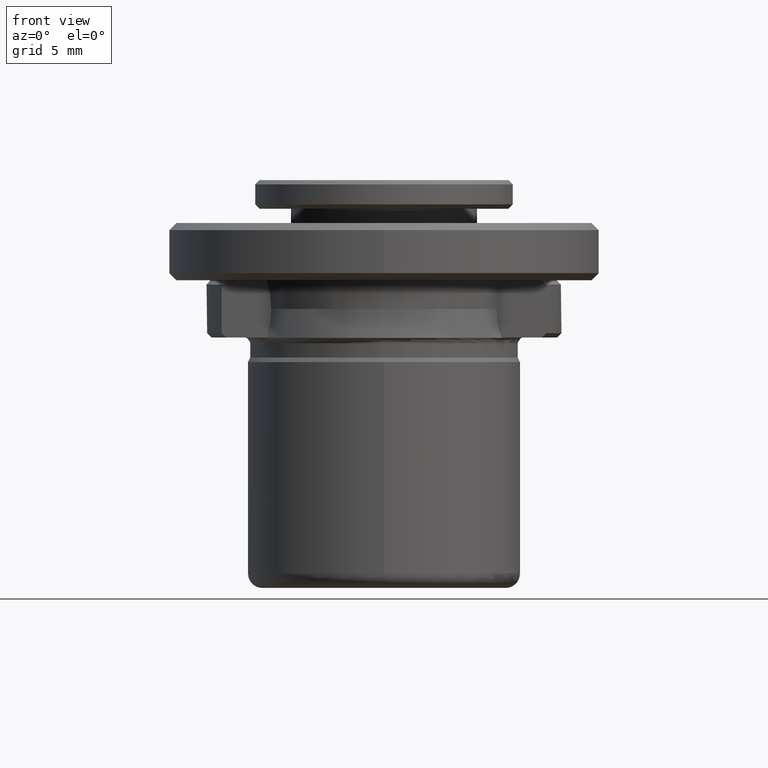
[diagram: clean part render]
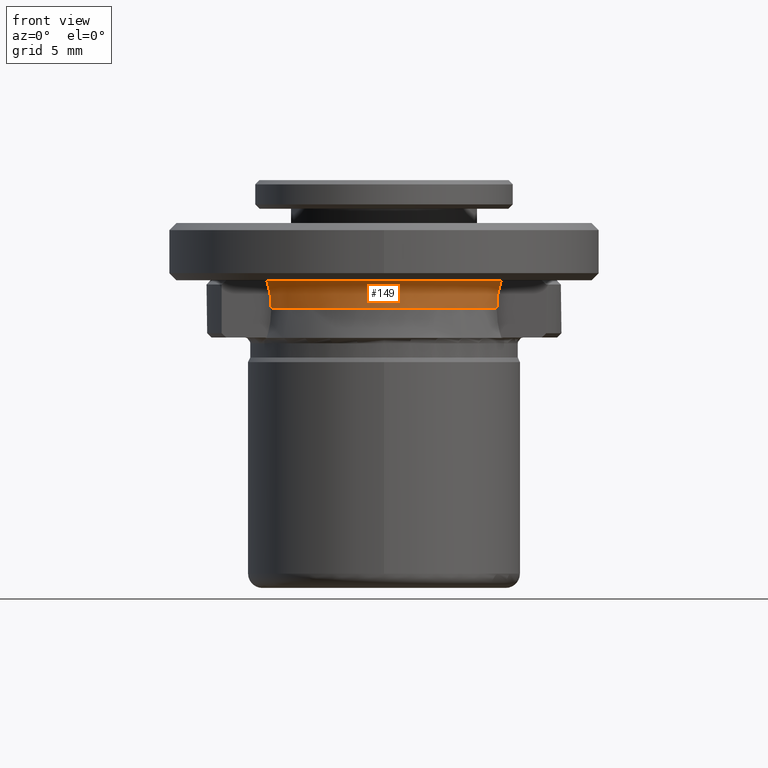
[diagram: same view with one face highlighted and labeled with its STEP entity id]
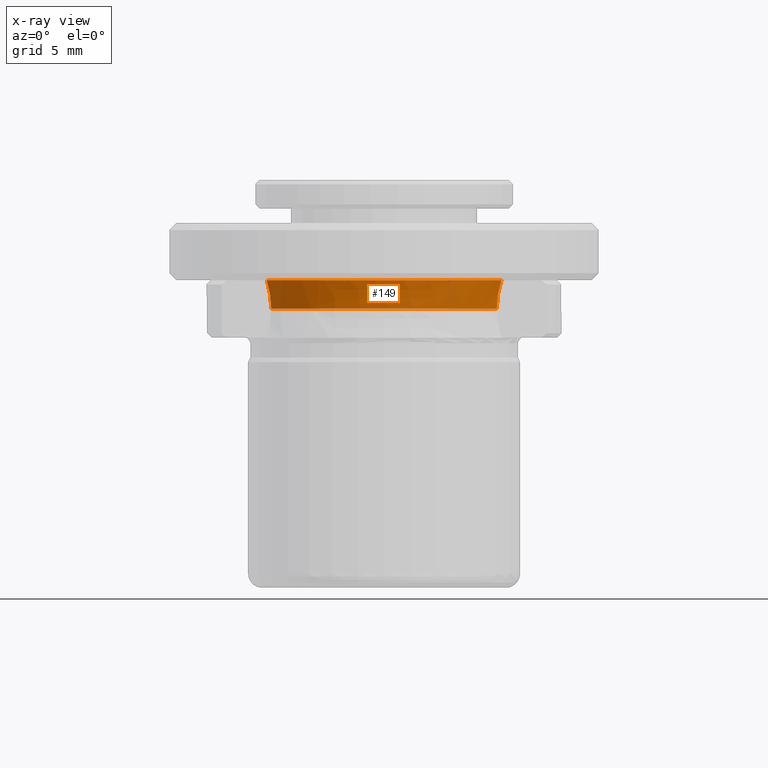
[diagram: x-ray of the same camera — body ghosted, the highlighted face saturated]
A machine part, front view. The second image highlights one B-rep face of the part: STEP entity #149.
The next image is the same camera in x-ray: the body ghosted, the highlighted face saturated — about 0% of this face is hidden behind the body in this view.
In plain terms, the highlighted face is a freeform B-spline surface patch.
Its self-contained STEP definition (entity closure, byte-faithful):
#27 = EDGE_CURVE ( 'NONE', #62, #469, #936, .T. ) ;
#39 = EDGE_CURVE ( 'NONE', #1438, #62, #1175, .T. ) ;
#62 = VERTEX_POINT ( 'NONE', #571 ) ;
#69 = ORIENTED_EDGE ( 'NONE', *, *, #520, .F. ) ;
#96 = ORIENTED_EDGE ( 'NONE', *, *, #39, .F. ) ;
#109 = CARTESIAN_POINT ( 'NONE',  ( -3.937024453000000300, -11.49113273000000000, 7.181098635999998900 ) ) ;
#149 = ADVANCED_FACE ( 'NONE', ( #460 ), #1447, .F. ) ;
#159 = CARTESIAN_POINT ( 'NONE',  ( -4.015183221997213000, -11.85561054524239600, 8.750000000000000000 ) ) ;
#189 = VERTEX_POINT ( 'NONE', #820 ) ;
#195 = CARTESIAN_POINT ( 'NONE',  ( -7.877112416672512800, -4.999999997048596400, 6.749999999319591400 ) ) ;
#243 = CARTESIAN_POINT ( 'NONE',  ( -3.987414726000000400, -11.63820860699999700, 6.001249375000002200 ) ) ;
#250 = CARTESIAN_POINT ( 'NONE',  ( 7.954581259999998500, -4.719140153000001400, 7.181098635999999800 ) ) ;
#257 = EDGE_LOOP ( 'NONE', ( #96, #1485, #69, #360 ) ) ;
#360 = ORIENTED_EDGE ( 'NONE', *, *, #27, .F. ) ;
#365 = CARTESIAN_POINT ( 'NONE',  ( 7.987554438067028300, -5.000000000000000000, 8.103832764885185100 ) ) ;
#390 = CARTESIAN_POINT ( 'NONE',  ( -4.004941237999998900, -11.68936385900000000, 8.356088229000002700 ) ) ;
#450 = CARTESIAN_POINT ( 'NONE',  ( -7.877112416672512800, -4.999999997048596400, 6.749999999319591400 ) ) ;
#460 = FACE_OUTER_BOUND ( 'NONE', #257, .T. ) ;
#469 = VERTEX_POINT ( 'NONE', #756 ) ;
#476 = CARTESIAN_POINT ( 'NONE',  ( -8.196975813224247200, -5.000000000059219300, 8.750000000000000000 ) ) ;
#520 = EDGE_CURVE ( 'NONE', #469, #189, #868, .T. ) ;
#539 = CARTESIAN_POINT ( 'NONE',  ( 8.091804077999999100, -4.800549054000000200, 8.356088229000002700 ) ) ;
#571 = CARTESIAN_POINT ( 'NONE',  ( -7.877112416672512800, -4.999999997048596400, 6.749999999319591400 ) ) ;
#691 = CARTESIAN_POINT ( 'NONE',  ( -4.187432670999998900, -12.22200806699999900, 9.461645811000002100 ) ) ;
#756 = CARTESIAN_POINT ( 'NONE',  ( -8.196975813224247200, -5.000000000059219300, 8.750000000000000000 ) ) ;
#772 = CARTESIAN_POINT ( 'NONE',  ( 3.802041327538604200, -11.41995861482380700, 6.749999999011319800 ) ) ;
#820 = CARTESIAN_POINT ( 'NONE',  ( 8.196975813404300500, -5.000000000000000000, 8.750000000444099900 ) ) ;
#827 = CARTESIAN_POINT ( 'NONE',  ( 3.987414726000000400, -11.63820860699999700, 6.001249375000002200 ) ) ;
#834 = CARTESIAN_POINT ( 'NONE',  ( 8.460519829000002500, -5.019293605000001400, 9.461645811000002100 ) ) ;
#868 =( BOUNDED_CURVE ( )  B_SPLINE_CURVE ( 3, ( #1410, #159, #1679, #878 ),
 .UNSPECIFIED., .F., .T. ) 
 B_SPLINE_CURVE_WITH_KNOTS ( ( 4, 4 ),
 ( 0.0000000000000000000, 0.01955758531398497200 ),
 .UNSPECIFIED. ) 
 CURVE ( )  GEOMETRIC_REPRESENTATION_ITEM ( )  RATIONAL_B_SPLINE_CURVE ( ( 0.9839124906715949200, 0.6695507562529831000, 0.6695507562529824400, 0.9839124906715930300 ) ) 
 REPRESENTATION_ITEM ( '' )  );
#878 = CARTESIAN_POINT ( 'NONE',  ( 8.196975813404298700, -5.000000000000000000, 8.750000000444099900 ) ) ;
#922 = B_SPLINE_CURVE_WITH_KNOTS ( 'NONE', 3,
 ( #1187, #365, #1739, #934 ),
 .UNSPECIFIED., .F., .F.,
 ( 4, 4 ),
 ( 4.215344750152631900E-013, 0.002031991266945169900 ),
 .UNSPECIFIED. ) ;
#934 = CARTESIAN_POINT ( 'NONE',  ( 7.877112416672511100, -4.999999997048597300, 6.749999999319589600 ) ) ;
#936 = B_SPLINE_CURVE_WITH_KNOTS ( 'NONE', 3,
 ( #450, #1678, #1443, #476 ),
 .UNSPECIFIED., .F., .F.,
 ( 4, 4 ),
 ( 3.469446951953614200E-018, 0.002031686963425014700 ),
 .UNSPECIFIED. ) ;
#951 = CARTESIAN_POINT ( 'NONE',  ( -7.954581259999998500, -4.719140153000001400, 7.181098635999999800 ) ) ;
#1044 = CARTESIAN_POINT ( 'NONE',  ( -3.802041327538610900, -11.41995861482380400, 6.749999999011321500 ) ) ;
#1092 = CARTESIAN_POINT ( 'NONE',  ( 3.937024453000000300, -11.49113273000000000, 7.181098635999998900 ) ) ;
#1175 =( BOUNDED_CURVE ( )  B_SPLINE_CURVE ( 3, ( #1705, #772, #1044, #195 ),
 .UNSPECIFIED., .F., .F. ) 
 B_SPLINE_CURVE_WITH_KNOTS ( ( 4, 4 ),
 ( 0.0000000000000000000, 1.000000000000000000 ),
 .UNSPECIFIED. ) 
 CURVE ( )  GEOMETRIC_REPRESENTATION_ITEM ( )  RATIONAL_B_SPLINE_CURVE ( ( 0.9738585525977352400, 0.6725504043378097700, 0.6725504043378099900, 0.9738585525977354600 ) ) 
 REPRESENTATION_ITEM ( '' )  );
#1187 = CARTESIAN_POINT ( 'NONE',  ( 8.196975813404300500, -5.000000000000000000, 8.750000000444099900 ) ) ;
#1209 = CARTESIAN_POINT ( 'NONE',  ( -8.056392546000001400, -4.779540785000001800, 6.001249375000001300 ) ) ;
#1217 = CARTESIAN_POINT ( 'NONE',  ( -8.091804077999999100, -4.800549054000000200, 8.356088229000002700 ) ) ;
#1233 = EDGE_CURVE ( 'NONE', #189, #1438, #922, .T. ) ;
#1363 = CARTESIAN_POINT ( 'NONE',  ( 4.004941237999998900, -11.68936385900000000, 8.356088229000002700 ) ) ;
#1410 = CARTESIAN_POINT ( 'NONE',  ( -8.196975813224247200, -5.000000000059219300, 8.750000000000000000 ) ) ;
#1438 = VERTEX_POINT ( 'NONE', #1692 ) ;
#1443 = CARTESIAN_POINT ( 'NONE',  ( -7.987555906389316000, -5.000000000000000900, 8.103837295376664000 ) ) ;
#1447 =( BOUNDED_SURFACE ( )  B_SPLINE_SURFACE ( 3, 3, ( 
 ( #1209, #243, #827, #1764 ),
 ( #951, #109, #1092, #250 ),
 ( #1217, #390, #1363, #539 ),
 ( #1496, #691, #1632, #834 ) ),
 .UNSPECIFIED., .F., .F., .F. ) 
 B_SPLINE_SURFACE_WITH_KNOTS ( ( 4, 4 ),
 ( 4, 4 ),
 ( 0.0000000000000000000, 1.000000000000000000 ),
 ( 0.0000000000000000000, 1.000000000000000000 ),
 .UNSPECIFIED. ) 
 GEOMETRIC_REPRESENTATION_ITEM ( )  RATIONAL_B_SPLINE_SURFACE ( (
 ( 1.000000000000000000, 0.6734850439786470600, 0.6734850439786470600, 1.000000000000000000),
 ( 0.9816814431953340100, 0.6611477699434310500, 0.6611477699434310500, 0.9816814431953340100),
 ( 0.9816814431953340100, 0.6611477699434310500, 0.6611477699434310500, 0.9816814431953340100),
 ( 1.000000000000000000, 0.6734850439786470600, 0.6734850439786470600, 1.000000000000000000) ) ) 
 REPRESENTATION_ITEM ( '' )  SURFACE ( )  );
#1485 = ORIENTED_EDGE ( 'NONE', *, *, #1233, .F. ) ;
#1496 = CARTESIAN_POINT ( 'NONE',  ( -8.460519829000002500, -5.019293605000001400, 9.461645811000002100 ) ) ;
#1632 = CARTESIAN_POINT ( 'NONE',  ( 4.187432670999998900, -12.22200806699999900, 9.461645811000002100 ) ) ;
#1678 = CARTESIAN_POINT ( 'NONE',  ( -7.877112415001547200, -5.000000000000002700, 7.429349860856746100 ) ) ;
#1679 = CARTESIAN_POINT ( 'NONE',  ( 4.015183221997171300, -11.85561054524241900, 8.750000000000001800 ) ) ;
#1692 = CARTESIAN_POINT ( 'NONE',  ( 7.877112416672511100, -4.999999997048597300, 6.749999999319589600 ) ) ;
#1705 = CARTESIAN_POINT ( 'NONE',  ( 7.877112416672511100, -4.999999997048597300, 6.749999999319589600 ) ) ;
#1739 = CARTESIAN_POINT ( 'NONE',  ( 7.877112415001547200, -5.000000000000000900, 7.429352586306534600 ) ) ;
#1764 = CARTESIAN_POINT ( 'NONE',  ( 8.056392546000001400, -4.779540785000001800, 6.001249375000001300 ) ) ;